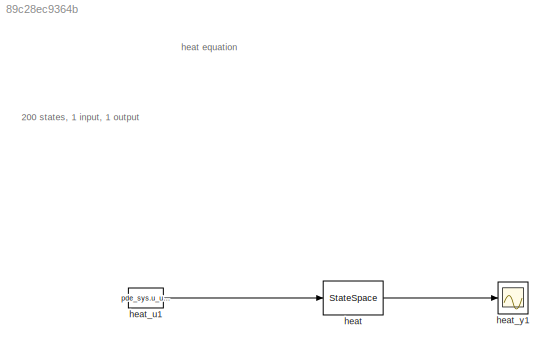
MODEL slx_89c28ec9364b
KIND model
BLOCK [StateSpace] heat
  A = heat_sys.sys.a
  B = heat_sys.sys.b
  C = heat_sys.sys.c
  D = heat_sys.sys.d
  Ports = [1, 1]
  X0 = heat_sys.x0_lb
BLOCK [Constant] heat_u1
  Value = pde_sys.u_ub(1)
BLOCK [Scope] heat_y1
  Floating = off
  LimitDataPoints = off
  NumInputPorts = 1
  Ports = [1]
  SaveName = ScopeData31
  ShowLegends = off
ANNOTATION (root): 200 states, 1 input, 1 output
ANNOTATION (root): heat equation
LINE heat:1 -> heat_y1:1
LINE heat_u1:1 -> heat:1
